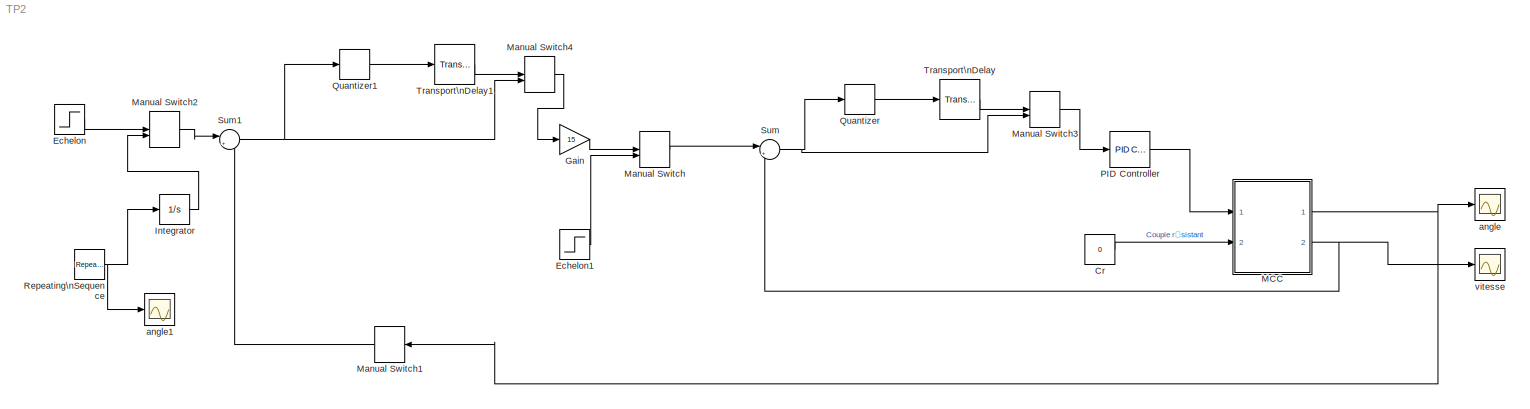
MODEL TP2
KIND model
CONFIG InitFcn = TD2_config
BLOCK [Constant] Cr
  SID = 1
  Value = 0
BLOCK [Step] Echelon
  SID = 2
  SampleTime = 0
  Time = 0
BLOCK [Step] Echelon1
  SID = 42
  SampleTime = 0
  Time = 0
BLOCK [Gain] Gain
  Gain = 15
  OutDataTypeStr = Inherit: Inherit via internal rule
  ParamDataTypeStr = Inherit: Inherit via internal rule
  SID = 40
  SaturateOnIntegerOverflow = off
BLOCK [Integrator] Integrator
  Ports = [1, 1]
  SID = 50
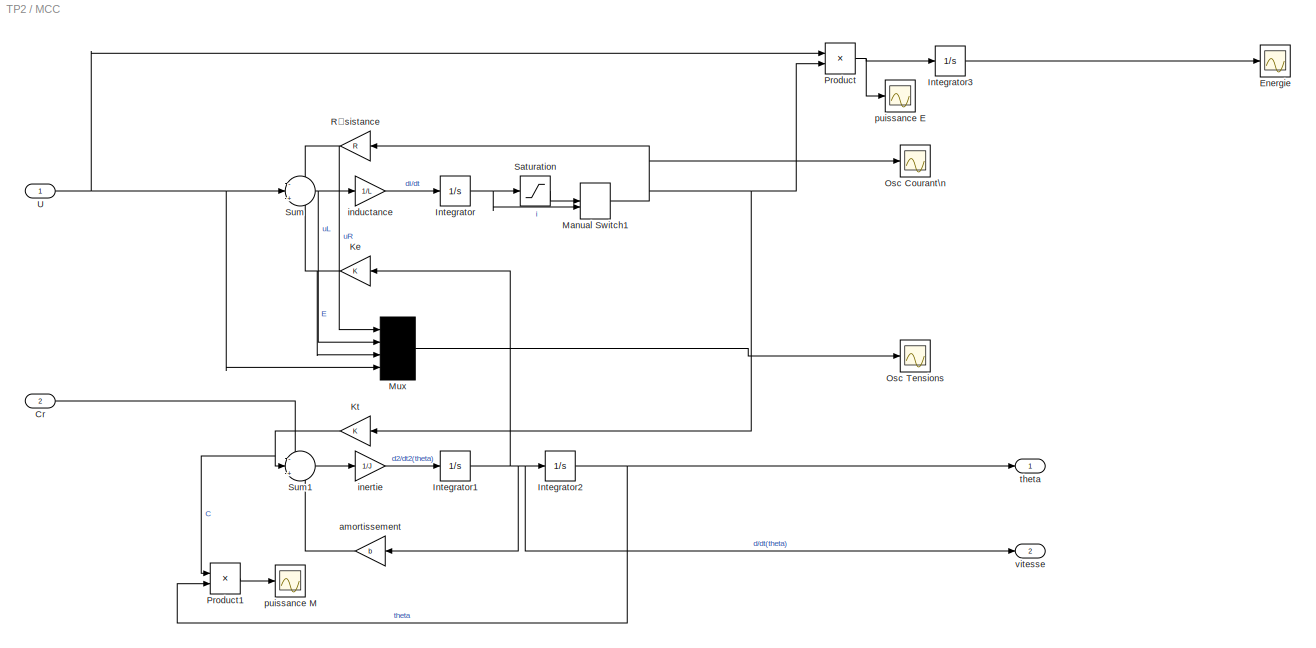
BLOCK [SubSystem] MCC
  Ports = [2, 2]
  RequestExecContextInheritance = off
  SID = 3
  Variant = off
BLOCK [Inport] MCC/Cr
  IconDisplay = Port number
  Port = 2
  SID = 5
BLOCK [Scope] MCC/Energie
  NumInputPorts = 1
  Ports = [1]
  SID = 53
  ScopeSpecificationString = Simulink.scopes.TimeScopeBlockCfg('CurrentConfiguration', extmgr.ConfigurationSet(extmgr.Configuration('Core','General UI',true),extmgr.Configuration('Core','Source UI',true),extmgr.Configuration('Sources','WiredSimulink',true,'DataLoggingVariableName','ScopeData1'),extmgr.Configuration('Visuals','Time Domain',true,'SerializedDisplays',{struct('MinYLimReal','-1573145.05861','MaxYLimReal','14158305...<+1518ch>
BLOCK [Integrator] MCC/Integrator
  Ports = [1, 1]
  SID = 6
BLOCK [Integrator] MCC/Integrator1
  Ports = [1, 1]
  SID = 7
BLOCK [Integrator] MCC/Integrator2
  Ports = [1, 1]
  SID = 8
BLOCK [Integrator] MCC/Integrator3
  Ports = [1, 1]
  SID = 56
BLOCK [Gain] MCC/Ke
  Gain = K
  OutDataTypeStr = Inherit: Inherit via internal rule
  ParamDataTypeStr = Inherit: Inherit via internal rule
  SID = 9
  SaturateOnIntegerOverflow = off
BLOCK [Gain] MCC/Kt
  Gain = K
  OutDataTypeStr = Inherit: Inherit via internal rule
  ParamDataTypeStr = Inherit: Inherit via internal rule
  SID = 10
  SaturateOnIntegerOverflow = off
BLOCK [ManualSwitch] MCC/Manual Switch1
  CurrentSetting = 0
  SID = 62
BLOCK [Mux] MCC/Mux
  DisplayOption = signals
  Ports = [4, 1]
  SID = 11
BLOCK [Scope] MCC/Osc Courant\n
  NumInputPorts = 1
  Ports = [1]
  SID = 45
  ScopeSpecificationString = Simulink.scopes.TimeScopeBlockCfg('CurrentConfiguration', extmgr.ConfigurationSet(extmgr.Configuration('Core','General UI',true),extmgr.Configuration('Core','Source UI',true),extmgr.Configuration('Sources','WiredSimulink',true,'DataLoggingVariableName','ScopeData3'),extmgr.Configuration('Visuals','Time Domain',true,'SerializedDisplays',{struct('MinYLimReal','-368.05379','MaxYLimReal','194.28536','...<+1485ch>
BLOCK [Scope] MCC/Osc Tensions
  NumInputPorts = 1
  Ports = [1]
  SID = 12
  ScopeSpecificationString = Simulink.scopes.TimeScopeBlockCfg('CurrentConfiguration', extmgr.ConfigurationSet(extmgr.Configuration('Core','General UI',true),extmgr.Configuration('Core','Source UI',true),extmgr.Configuration('Sources','WiredSimulink',true,'DataLoggingVariableName','ScopeData1'),extmgr.Configuration('Visuals','Time Domain',true,'SerializedDisplays',{struct('MinYLimReal','-1.50121','MaxYLimReal','12.24002','YLa...<+1451ch>
BLOCK [Product] MCC/Product
  InputSameDT = off
  OutDataTypeStr = Inherit: Inherit via internal rule
  Ports = [2, 1]
  RndMeth = Floor
  SID = 52
  SaturateOnIntegerOverflow = off
BLOCK [Product] MCC/Product1
  InputSameDT = off
  OutDataTypeStr = Inherit: Inherit via internal rule
  Ports = [2, 1]
  RndMeth = Floor
  SID = 58
  SaturateOnIntegerOverflow = off
BLOCK [Gain] MCC/Résistance
  Gain = R
  OutDataTypeStr = Inherit: Inherit via internal rule
  ParamDataTypeStr = Inherit: Inherit via internal rule
  SID = 13
  SaturateOnIntegerOverflow = off
BLOCK [Saturate] MCC/Saturation
  InputPortMap = u0
  LowerLimit = -20
  Ports = [1, 1]
  SID = 60
  UpperLimit = 20
BLOCK [Sum] MCC/Sum
  IconShape = round
  InputSameDT = off
  Inputs = -|+|-
  OutDataTypeStr = Inherit: Inherit via internal rule
  Ports = [3, 1]
  SID = 14
  SaturateOnIntegerOverflow = off
BLOCK [Sum] MCC/Sum1
  IconShape = round
  InputSameDT = off
  Inputs = -|+|-
  OutDataTypeStr = Inherit: Inherit via internal rule
  Ports = [3, 1]
  SID = 15
  SaturateOnIntegerOverflow = off
BLOCK [Inport] MCC/U
  IconDisplay = Port number
  SID = 4
BLOCK [Gain] MCC/amortissement
  Gain = b
  OutDataTypeStr = Inherit: Inherit via internal rule
  ParamDataTypeStr = Inherit: Inherit via internal rule
  SID = 16
  SaturateOnIntegerOverflow = off
BLOCK [Gain] MCC/inductance
  Gain = 1/L
  OutDataTypeStr = Inherit: Inherit via internal rule
  ParamDataTypeStr = Inherit: Inherit via internal rule
  SID = 17
  SaturateOnIntegerOverflow = off
BLOCK [Gain] MCC/inertie
  Gain = 1/J
  OutDataTypeStr = Inherit: Inherit via internal rule
  ParamDataTypeStr = Inherit: Inherit via internal rule
  SID = 18
  SaturateOnIntegerOverflow = off
BLOCK [Scope] MCC/puissance E
  NumInputPorts = 1
  Ports = [1]
  SID = 57
  ScopeSpecificationString = Simulink.scopes.TimeScopeBlockCfg('CurrentConfiguration', extmgr.ConfigurationSet(extmgr.Configuration('Core','General UI',true),extmgr.Configuration('Core','Source UI',true),extmgr.Configuration('Sources','WiredSimulink',true,'DataLoggingVariableName','ScopeData2'),extmgr.Configuration('Visuals','Time Domain',true,'SerializedDisplays',{struct('MinYLimReal','-1866.82356','MaxYLimReal','15175.71404...<+1488ch>
BLOCK [Scope] MCC/puissance M
  NumInputPorts = 1
  Ports = [1]
  SID = 59
  ScopeSpecificationString = Simulink.scopes.TimeScopeBlockCfg('CurrentConfiguration', extmgr.ConfigurationSet(extmgr.Configuration('Core','General UI',true),extmgr.Configuration('Core','Source UI',true),extmgr.Configuration('Sources','WiredSimulink',true,'DataLoggingVariableName','ScopeData3'),extmgr.Configuration('Visuals','Time Domain',true,'SerializedDisplays',{struct('MinYLimReal','-7760.10282','MaxYLimReal','3138.7982',...<+1485ch>
BLOCK [Outport] MCC/theta
  IconDisplay = Port number
  SID = 19
BLOCK [Outport] MCC/vitesse
  IconDisplay = Port number
  Port = 2
  SID = 21
BLOCK [ManualSwitch] Manual Switch
  SID = 41
BLOCK [ManualSwitch] Manual Switch1
  SID = 43
BLOCK [ManualSwitch] Manual Switch2
  CurrentSetting = 0
  SID = 51
BLOCK [ManualSwitch] Manual Switch3
  CurrentSetting = 0
  SID = 63
BLOCK [ManualSwitch] Manual Switch4
  SID = 67
BLOCK [Reference] PID Controller  REF=simulink/Continuous/PID Controller
  AntiWindupMode = none
  Controller = PID
  ControllerParametersSource = internal
  D = 0.02
  DGainOutDataTypeStr = Inherit: Inherit via internal rule
  DOutDataTypeStr = Inherit: Inherit via internal rule
  DOutMax = []
  DOutMin = []
  DParamDataTypeStr = Inherit: Inherit via internal rule
  DParamMax = []
  DParamMin = []
  DProdOutDataTypeStr = Inherit: Inherit via internal rule
  DifferentiatorICPrevScaledInput = 0
  DifferentiatorOutDataTypeStr = Inherit: Inherit via internal rule
  DifferentiatorOutMax = []
  DifferentiatorOutMin = []
  DivideOutDataTypeStr = Inherit: Inherit via internal rule
  DivideOutMax = []
  DivideOutMin = []
  ExternalReset = none
  FilterContinuousStateAttributes = ''
  FilterDiffDenAccumDataTypeStr = Inherit: Inherit via internal rule
  FilterDiffDenProductOutputDataTypeStr = Inherit: Inherit via internal rule
  FilterDiffNumAccumDataTypeStr = Inherit: Inherit via internal rule
  FilterDiffNumProductOutputDataTypeStr = Inherit: Inherit via internal rule
  FilterDiffOutCoefDataTypeStr = Inherit: Inherit via internal rule
  FilterDiffOutCoefMax = []
  FilterDiffOutCoefMin = []
  FilterMethod = Forward Euler
  FilterOutDataTypeStr = Inherit: Inherit via internal rule
  FilterOutMax = []
  FilterOutMin = []
  FilterRTWStateStorageClass = Auto
  FilterStateMustResolveToSignalObject = off
  Form = Parallel
  I = 25
  IGainOutDataTypeStr = Inherit: Inherit via internal rule
  IOutDataTypeStr = Inherit: Inherit via internal rule
  IOutMax = []
  IOutMin = []
  IParamDataTypeStr = Inherit: Inherit via internal rule
  IParamMax = []
  IParamMin = []
  IProdOutDataTypeStr = Inherit: Inherit via internal rule
  IgnoreLimit = off
  InitialConditionForFilter = 0
  InitialConditionForIntegrator = 0
  InitialConditionSetting = State (most efficient)
  InitialConditionSource = internal
  IntegratorContinuousStateAttributes = ''
  IntegratorMethod = Forward Euler
  IntegratorOutDataTypeStr = Inherit: Inherit via internal rule
  IntegratorOutMax = []
  IntegratorOutMin = []
  IntegratorRTWStateStorageClass = Auto
  IntegratorStateMustResolveToSignalObject = off
  Kb = 1
  KbOutDataTypeStr = Inherit: Inherit via internal rule
  KbOutMax = []
  KbOutMin = []
  KbParamDataTypeStr = Inherit: Inherit via internal rule
  KbParamMax = []
  KbParamMin = []
  Kt = 1
  KtOutDataTypeStr = Inherit: Inherit via internal rule
  KtOutMax = []
  KtOutMin = []
  KtParamDataTypeStr = Inherit: Inherit via internal rule
  KtParamMax = []
  KtParamMin = []
  LimitOutput = off
  LinearizeAsGain = on
  LockScale = off
  LowerSaturationLimit = -inf
  N = 100
  NGainOutDataTypeStr = Inherit: Inherit via internal rule
  NOutDataTypeStr = Inherit: Inherit via internal rule
  NOutMax = []
  NOutMin = []
  NParamDataTypeStr = Inherit: Inherit via internal rule
  NParamMax = []
  NParamMin = []
  NProdOutDataTypeStr = Inherit: Inherit via internal rule
  P = 3
  PGainOutDataTypeStr = Inherit: Inherit via internal rule
  POutDataTypeStr = Inherit: Inherit via internal rule
  POutMax = []
  POutMin = []
  PParamDataTypeStr = Inherit: Inherit via internal rule
  PParamMax = []
  PParamMin = []
  PProdOutDataTypeStr = Inherit: Inherit via internal rule
  Ports = [1, 1]
  ReciprocalOutDataTypeStr = Inherit: Inherit via internal rule
  ReciprocalOutMax = []
  ReciprocalOutMin = []
  RndMeth = Floor
  SID = 44
  SampleTime = -1
  SaturateOnIntegerOverflow = off
  SaturationOutDataTypeStr = Inherit: Same as input
  SaturationOutMax = []
  SaturationOutMin = []
  SourceBlock = simulink/Continuous/PID Controller
  SourceProductBaseCode = SL
  SourceProductName = Simulink
  SourceType = PID 1dof
  SumAccumDataTypeStr = Inherit: Inherit via internal rule
  SumDAccumDataTypeStr = Inherit: Inherit via internal rule
  SumDOutDataTypeStr = Inherit: Inherit via internal rule
  SumDOutMax = []
  SumDOutMin = []
  SumDenAccumDataTypeStr = Inherit: Inherit via internal rule
  SumDenOutDataTypeStr = Inherit: Inherit via internal rule
  SumDenOutMax = []
  SumDenOutMin = []
  SumI1AccumDataTypeStr = Inherit: Inherit via internal rule
  SumI1OutDataTypeStr = Inherit: Inherit via internal rule
  SumI1OutMax = []
  SumI1OutMin = []
  SumI2AccumDataTypeStr = Inherit: Inherit via internal rule
  SumI2OutDataTypeStr = Inherit: Inherit via internal rule
  SumI2OutMax = []
  SumI2OutMin = []
  SumI3AccumDataTypeStr = Inherit: Inherit via internal rule
  SumI3OutDataTypeStr = Inherit: Inherit via internal rule
  SumI3OutMax = []
  SumI3OutMin = []
  SumNumAccumDataTypeStr = Inherit: Inherit via internal rule
  SumNumOutDataTypeStr = Inherit: Inherit via internal rule
  SumNumOutMax = []
  SumNumOutMin = []
  SumOutDataTypeStr = Inherit: Inherit via internal rule
  SumOutMax = []
  SumOutMin = []
  TimeDomain = Continuous-time
  TrackingMode = off
  TunerSelectOption = Transfer Function Based (PID Tuner App)
  UpperSaturationLimit = inf
  UseFilter = on
  ZeroCross = on
BLOCK [Quantizer] Quantizer
  QuantizationInterval = 0.02
  SID = 65
BLOCK [Quantizer] Quantizer1
  QuantizationInterval = 0.02
  SID = 68
BLOCK [Reference] Repeating\nSequence  REF=simulink/Sources/Repeating\nSequence
  Ports = [0, 1]
  SID = 47
  SourceBlock = simulink/Sources/Repeating\nSequence
  SourceProductBaseCode = SL
  SourceProductName = Simulink
  SourceType = Repeating table
  rep_seq_t = [0 0.2 0.25 0.3 0.5]
  rep_seq_y = [0 50 50 0 0]
BLOCK [Sum] Sum
  IconShape = round
  InputSameDT = off
  Inputs = |+-
  OutDataTypeStr = Inherit: Inherit via internal rule
  Ports = [2, 1]
  SID = 24
  SaturateOnIntegerOverflow = off
BLOCK [Sum] Sum1
  IconShape = round
  InputSameDT = off
  Inputs = |+-
  OutDataTypeStr = Inherit: Inherit via internal rule
  Ports = [2, 1]
  SID = 39
  SaturateOnIntegerOverflow = off
BLOCK [TransportDelay] Transport\nDelay
  DelayTime = 0.1
  Ports = [1, 1]
  SID = 64
BLOCK [TransportDelay] Transport\nDelay1
  DelayTime = 0
  Ports = [1, 1]
  SID = 69
BLOCK [Scope] angle
  NumInputPorts = 1
  Ports = [1]
  SID = 38
  ScopeSpecificationString = Simulink.scopes.TimeScopeBlockCfg('CurrentConfiguration', extmgr.ConfigurationSet(extmgr.Configuration('Core','General UI',true),extmgr.Configuration('Core','Source UI',true),extmgr.Configuration('Sources','WiredSimulink',true),extmgr.Configuration('Visuals','Time Domain',true,'SerializedDisplays',{struct('MinYLimReal','-4.3686','MaxYLimReal','39.31743','YLabelReal','','MinYLimMag','0.00000','MaxY...<+1402ch>
BLOCK [Scope] angle1
  NumInputPorts = 1
  Ports = [1]
  SID = 66
  ScopeSpecificationString = Simulink.scopes.TimeScopeBlockCfg('CurrentConfiguration', extmgr.ConfigurationSet(extmgr.Configuration('Core','General UI',true),extmgr.Configuration('Core','Source UI',true),extmgr.Configuration('Sources','WiredSimulink',true,'DataLoggingVariableName','ScopeData4'),extmgr.Configuration('Visuals','Time Domain',true,'SerializedDisplays',{struct('MinYLimReal','-120.80557','MaxYLimReal','270.33283','...<+1462ch>
BLOCK [Scope] vitesse
  NumInputPorts = 1
  Ports = [1]
  SID = 22
  ScopeSpecificationString = Simulink.scopes.TimeScopeBlockCfg('CurrentConfiguration', extmgr.ConfigurationSet(extmgr.Configuration('Core','General UI',true),extmgr.Configuration('Core','Source UI',true),extmgr.Configuration('Sources','WiredSimulink',true,'DataLoggingVariableName','ScopeData2'),extmgr.Configuration('Visuals','Time Domain',true,'SerializedDisplays',{struct('MinYLimReal','-75.00928','MaxYLimReal','208.71448','Y...<+1455ch>
LINE Cr:1 -> MCC:2
LINE Echelon1:1 -> Manual Switch:2
LINE Echelon:1 -> Manual Switch2:1
LINE Gain:1 -> Manual Switch:1
LINE Integrator:1 -> Manual Switch2:2
LINE MCC/Cr:1 -> MCC/Sum1:1
NET MCC/Integrator1:1 -> MCC/Integrator2:1, MCC/Ke:1, MCC/amortissement:1, MCC/vitesse:1
NET MCC/Integrator2:1 -> MCC/Product1:2, MCC/theta:1
LINE MCC/Integrator3:1 -> MCC/Energie:1
NET MCC/Integrator:1 -> MCC/Manual Switch1:2, MCC/Saturation:1
NET MCC/Ke:1 -> MCC/Mux:3, MCC/Sum:3
NET MCC/Kt:1 -> MCC/Product1:1, MCC/Sum1:2
NET MCC/Manual Switch1:1 -> MCC/Kt:1, MCC/Osc Courant\n:1, MCC/Product:2, MCC/Résistance:1
LINE MCC/Mux:1 -> MCC/Osc Tensions:1
LINE MCC/Product1:1 -> MCC/puissance M:1
NET MCC/Product:1 -> MCC/Integrator3:1, MCC/puissance E:1
NET MCC/Résistance:1 -> MCC/Mux:1, MCC/Sum:1
LINE MCC/Saturation:1 -> MCC/Manual Switch1:1
LINE MCC/Sum1:1 -> MCC/inertie:1
NET MCC/Sum:1 -> MCC/Mux:2, MCC/inductance:1
NET MCC/U:1 -> MCC/Mux:4, MCC/Product:1, MCC/Sum:2
LINE MCC/amortissement:1 -> MCC/Sum1:3
LINE MCC/inductance:1 -> MCC/Integrator:1
LINE MCC/inertie:1 -> MCC/Integrator1:1
NET MCC:1 -> Manual Switch1:1, angle:1
NET MCC:2 -> Sum:2, vitesse:1
LINE Manual Switch1:1 -> Sum1:2
LINE Manual Switch2:1 -> Sum1:1
LINE Manual Switch3:1 -> PID Controller:1
LINE Manual Switch4:1 -> Gain:1
LINE Manual Switch:1 -> Sum:1
LINE PID Controller:1 -> MCC:1
LINE Quantizer1:1 -> Transport\nDelay1:1
LINE Quantizer:1 -> Transport\nDelay:1
NET Repeating\nSequence:1 -> Integrator:1, angle1:1
NET Sum1:1 -> Manual Switch4:2, Quantizer1:1
NET Sum:1 -> Manual Switch3:2, Quantizer:1
LINE Transport\nDelay1:1 -> Manual Switch4:1
LINE Transport\nDelay:1 -> Manual Switch3:1
note: NET lines group one-source signal fan-out (src -> all destinations, sorted); 1:1 wires keep LINE
